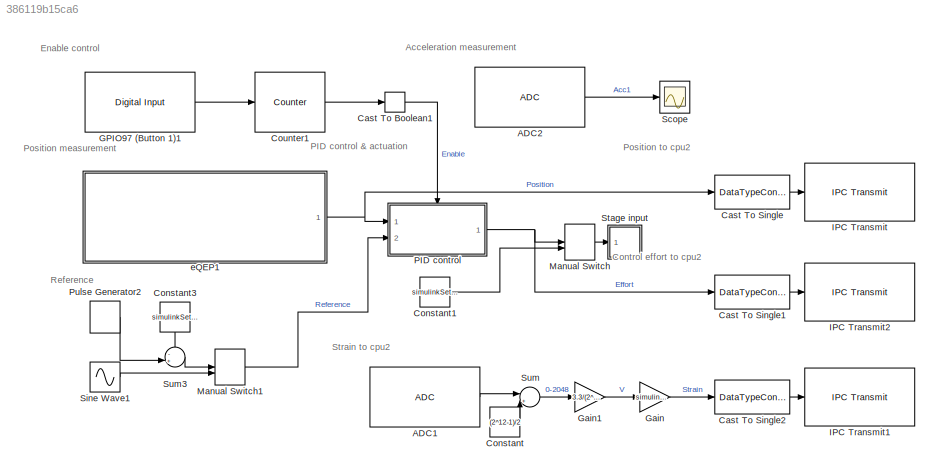
MODEL slx_386119b15ca6
KIND model
CONFIG AbsTol = auto
CONFIG EnableMultiTasking = on
CONFIG FixedStep = auto
CONFIG InitFcn = clear\naddpath('./../1D/')\naddpath(genpath('./nml'))\naddpath(genpath('./gsl'))\naddpath('./MatLib')\n\n% Run configuration file\n[Beam, sBeam, modelSettings,...\n        simulationSettings, plotSettings, simulinkSettings,...\n        LO,KF,AKF,DKF,GDF,...\n        Cd] = configure(1);\n\n% Additional settings\nAKF.nd = AKF.derivativeOrder;\nDKF.nd = DKF.derivativeOrder;\nmodelSettings.l = 1;\n\n% Build beam model...<+564ch>
CONFIG MaxStep = auto
CONFIG MinStep = auto
CONFIG RelTol = 1e-3
CONFIG SampleTimeConstraint = Unconstrained
CONFIG SolverName = FixedStepDiscrete
CONFIG StartTime = 0.0
CONFIG StopTime = Inf
BLOCK [Reference] ADC1  REF=c2802xlib/ADC
  Ports = [0, 1]
  SourceBlock = c2802xlib/ADC
  SourceProductBaseCode = TIC2000
  SourceType = ADC Type 3-5
  UserDataPersistent = on
BLOCK [Reference] ADC2  REF=c2802xlib/ADC
  Ports = [0, 1]
  SourceBlock = c2802xlib/ADC
  SourceProductBaseCode = TIC2000
  SourceType = ADC Type 3-5
  UserDataPersistent = on
BLOCK [DataTypeConversion] Cast To Boolean1
  OutDataTypeStr = boolean
  RndMeth = Floor
  SaturateOnIntegerOverflow = off
BLOCK [DataTypeConversion] Cast To Single
  OutDataTypeStr = single
  RndMeth = Floor
  SaturateOnIntegerOverflow = off
BLOCK [DataTypeConversion] Cast To Single1
  OutDataTypeStr = single
  RndMeth = Floor
  SaturateOnIntegerOverflow = off
BLOCK [DataTypeConversion] Cast To Single2
  OutDataTypeStr = single
  RndMeth = Floor
  SaturateOnIntegerOverflow = off
BLOCK [Constant] Constant
  Value = (2^12-1)/2
BLOCK [Constant] Constant1
  Value = simulinkSettings.inputForce*simulinkSettings.matchingGain
BLOCK [Constant] Constant3
  NameLocation = left
  Value = simulinkSettings.referenceAmplitude/2
BLOCK [Reference] Counter1  REF=dspswit3/Counter
  Ports = [1, 1]
  SourceBlock = dspswit3/Counter
  SourceProductBaseCode = DS
  SourceType = Counter
BLOCK [Reference] GPIO97 (Button 1)1  REF=c2837xDlib/Digital Input
  Ports = [0, 1]
  SourceBlock = c2837xDlib/Digital Input
  SourceProductBaseCode = TIC2000
  SourceType = F2837x GPIO Digital Input
  UserDataPersistent = on
BLOCK [Gain] Gain
  Gain = simulinkSettings.strainGain
BLOCK [Gain] Gain1
  Gain = 3.3/(2^12-1)
BLOCK [Reference] IPC Transmit  REF=c2837xDlib/IPC Transmit
  Ports = [1]
  SourceBlock = c2837xDlib/IPC Transmit
  SourceProductBaseCode = TIC2000
  SourceType = C28x IPC Transmit
BLOCK [Reference] IPC Transmit1  REF=c2837xDlib/IPC Transmit
  Ports = [1]
  SourceBlock = c2837xDlib/IPC Transmit
  SourceProductBaseCode = TIC2000
  SourceType = C28x IPC Transmit
BLOCK [Reference] IPC Transmit2  REF=c2837xDlib/IPC Transmit
  Ports = [1]
  SourceBlock = c2837xDlib/IPC Transmit
  SourceProductBaseCode = TIC2000
  SourceType = C28x IPC Transmit
BLOCK [ManualSwitch] Manual Switch
BLOCK [ManualSwitch] Manual Switch1
  CurrentSetting = 0
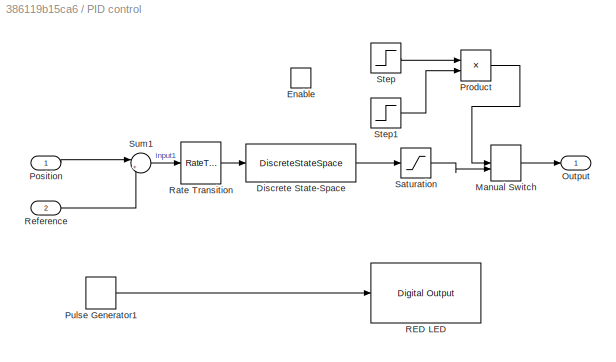
BLOCK [SubSystem] PID control
  Ports = [2, 1, 1]
  RequestExecContextInheritance = off
BLOCK [DiscreteStateSpace] PID control/Discrete State-Space
  A = Cd.A
  B = Cd.B
  C = Cd.C
  D = Cd.d
  SampleTime = simulinkSettings.PIDSampleTime
BLOCK [EnablePort] PID control/Enable
  Ports = []
BLOCK [ManualSwitch] PID control/Manual Switch
BLOCK [Outport] PID control/Output
  InitialOutput = [0]
  OutputWhenDisabled = reset
BLOCK [Inport] PID control/Position
BLOCK [Product] PID control/Product
  Ports = [2, 1]
BLOCK [DiscretePulseGenerator] PID control/Pulse Generator1
  Period = 1
  Ports = [0, 1]
  PulseType = Time based
  PulseWidth = 50
  SampleTime = -1
BLOCK [Reference] PID control/RED LED  REF=c2837xDlib/Digital Output
  Ports = [1]
  SourceBlock = c2837xDlib/Digital Output
  SourceProductBaseCode = TIC2000
  SourceType = F2837x GPIO Digital Output
  UserDataPersistent = on
BLOCK [RateTransition] PID control/Rate Transition
BLOCK [Inport] PID control/Reference
  Port = 2
BLOCK [Saturate] PID control/Saturation
  LowerLimit = -100
  UpperLimit = 100
BLOCK [Step] PID control/Step
  After = 100
  SampleTime = simulinkSettings.measurementSampleTime
  Time = simulinkSettings.impulseTime
BLOCK [Step] PID control/Step1
  After = 0
  Before = 100
  SampleTime = simulinkSettings.measurementSampleTime
  Time = simulinkSettings.impulseTime + simulinkSettings.impulseSamples*simulinkSettings.measurementSampleTime
BLOCK [Sum] PID control/Sum1
  Inputs = |+-
  Ports = [2, 1]
BLOCK [DiscretePulseGenerator] Pulse Generator2
  Amplitude = simulinkSettings.referenceAmplitude
  Period = 1/simulinkSettings.referenceSampleTime*5
  Ports = [0, 1]
  PulseWidth = 1/simulinkSettings.referenceSampleTime*2.5
  SampleTime = simulinkSettings.measurementSampleTime
BLOCK [Scope] Scope
  Floating = off
  NumInputPorts = 1
  Ports = [1]
  ScopeSpecificationString = Simulink.scopes.TimeScopeBlockCfg('CurrentConfiguration', extmgr.ConfigurationSet(extmgr.Configuration('Core','General UI',true),extmgr.Configuration('Core','Source UI',true),extmgr.Configuration('Sources','WiredSimulink',true),extmgr.Configuration('Visuals','Time Domain',true),extmgr.Configuration('Tools','Plot Navigation',true),extmgr.Configuration('Tools','Measurements',true)),'Version','2022a'...<+1ch>
BLOCK [Sin] Sine Wave1
  Amplitude = simulinkSettings.referenceAmplitude
  Ports = [0, 1]
  SampleTime = simulinkSettings.measurementSampleTime
  Samples = 1/simulinkSettings.referenceSampleTime*1/simulinkSettings.referenceFrequency
  SineType = Sample based
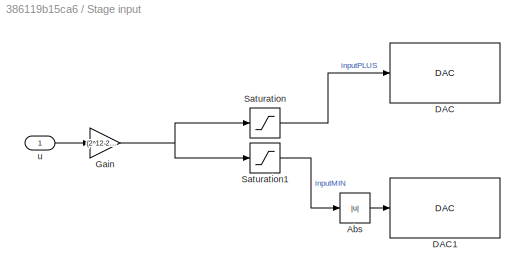
BLOCK [SubSystem] Stage input
  Ports = [1]
  RequestExecContextInheritance = off
BLOCK [Abs] Stage input/Abs
  SaturateOnIntegerOverflow = off
BLOCK [Reference] Stage input/DAC  REF=c2837xDlib/DAC
  Ports = [1]
  SourceBlock = c2837xDlib/DAC
  SourceProductBaseCode = TIC2000
  SourceType = codertarget.tic2000.blocks.DACWrite
BLOCK [Reference] Stage input/DAC1  REF=c2837xDlib/DAC
  Ports = [1]
  SourceBlock = c2837xDlib/DAC
  SourceProductBaseCode = TIC2000
  SourceType = codertarget.tic2000.blocks.DACWrite
BLOCK [Gain] Stage input/Gain
  Gain = (2^12-2)/100
BLOCK [Saturate] Stage input/Saturation
  LinearizeAsGain = off
  LowerLimit = 0
  UpperLimit = 4094
BLOCK [Saturate] Stage input/Saturation1
  LowerLimit = -4095
  UpperLimit = 0
BLOCK [Inport] Stage input/u
BLOCK [Sum] Sum
  Inputs = |+-
  Ports = [2, 1]
BLOCK [Sum] Sum3
  Inputs = -+|
  Ports = [2, 1]
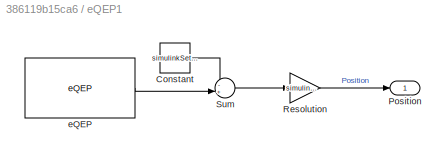
BLOCK [SubSystem] eQEP1
  Ports = [0, 1]
  RequestExecContextInheritance = off
BLOCK [Constant] eQEP1/Constant
  SampleTime = -1
  Value = simulinkSettings.maxEncoderPosition/2
BLOCK [Outport] eQEP1/Position
BLOCK [Gain] eQEP1/Resolution
  Gain = simulinkSettings.laserResolution
BLOCK [Sum] eQEP1/Sum
  Inputs = -+|
  Ports = [2, 1]
BLOCK [Reference] eQEP1/eQEP  REF=c280xlib/eQEP
  Ports = [0, 1]
  SourceBlock = c280xlib/eQEP
  SourceProductBaseCode = TIC2000
  SourceType = C28x eQEP
ANNOTATION (root): Acceleration measurement
ANNOTATION (root): Control effort to cpu2
ANNOTATION (root): Enable control
ANNOTATION (root): PID control & actuation
ANNOTATION (root): Position measurement
ANNOTATION (root): Position to cpu2
ANNOTATION (root): Reference
ANNOTATION (root): Strain to cpu2
LINE ADC1:1 -> Sum:1
LINE ADC2:1 -> Scope:1
LINE Cast To Boolean1:1 -> PID control:enable
LINE Cast To Single1:1 -> IPC Transmit2:1
LINE Cast To Single2:1 -> IPC Transmit1:1
LINE Cast To Single:1 -> IPC Transmit:1
LINE Constant1:1 -> Manual Switch:2
LINE Constant3:1 -> Sum3:1
LINE Constant:1 -> Sum:2
LINE Counter1:1 -> Cast To Boolean1:1
LINE GPIO97 (Button 1)1:1 -> Counter1:1
LINE Gain1:1 -> Gain:1
LINE Gain:1 -> Cast To Single2:1
LINE Manual Switch1:1 -> PID control:2
LINE Manual Switch:1 -> Stage input:1
LINE PID control/Discrete State-Space:1 -> PID control/Saturation:1
LINE PID control/Manual Switch:1 -> PID control/Output:1
LINE PID control/Position:1 -> PID control/Sum1:1
LINE PID control/Product:1 -> PID control/Manual Switch:1
LINE PID control/Pulse Generator1:1 -> PID control/RED LED:1
LINE PID control/Rate Transition:1 -> PID control/Discrete State-Space:1
LINE PID control/Reference:1 -> PID control/Sum1:2
LINE PID control/Saturation:1 -> PID control/Manual Switch:2
LINE PID control/Step1:1 -> PID control/Product:2
LINE PID control/Step:1 -> PID control/Product:1
LINE PID control/Sum1:1 -> PID control/Rate Transition:1
NET PID control:1 -> Cast To Single1:1, Manual Switch:1
LINE Pulse Generator2:1 -> Sum3:2
LINE Sine Wave1:1 -> Manual Switch1:2
LINE Stage input/Abs:1 -> Stage input/DAC1:1
NET Stage input/Gain:1 -> Stage input/Saturation1:1, Stage input/Saturation:1
LINE Stage input/Saturation1:1 -> Stage input/Abs:1
LINE Stage input/Saturation:1 -> Stage input/DAC:1
LINE Stage input/u:1 -> Stage input/Gain:1
LINE Sum3:1 -> Manual Switch1:1
LINE Sum:1 -> Gain1:1
LINE eQEP1/Constant:1 -> eQEP1/Sum:1
LINE eQEP1/Resolution:1 -> eQEP1/Position:1
LINE eQEP1/Sum:1 -> eQEP1/Resolution:1
LINE eQEP1/eQEP:1 -> eQEP1/Sum:2
NET eQEP1:1 -> Cast To Single:1, PID control:1
note: NET lines group one-source signal fan-out (src -> all destinations, sorted); 1:1 wires keep LINE
